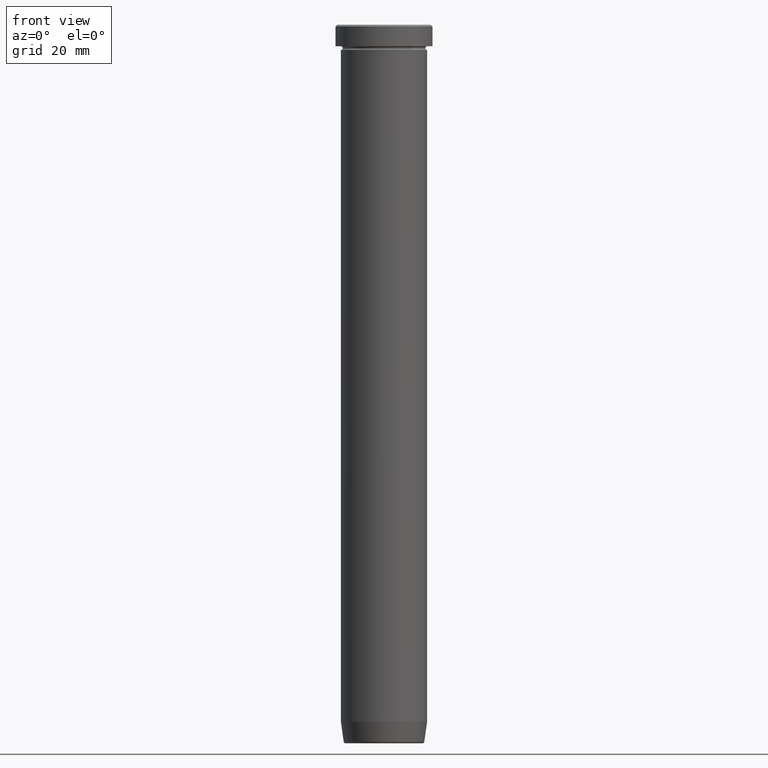
[diagram: clean part render]
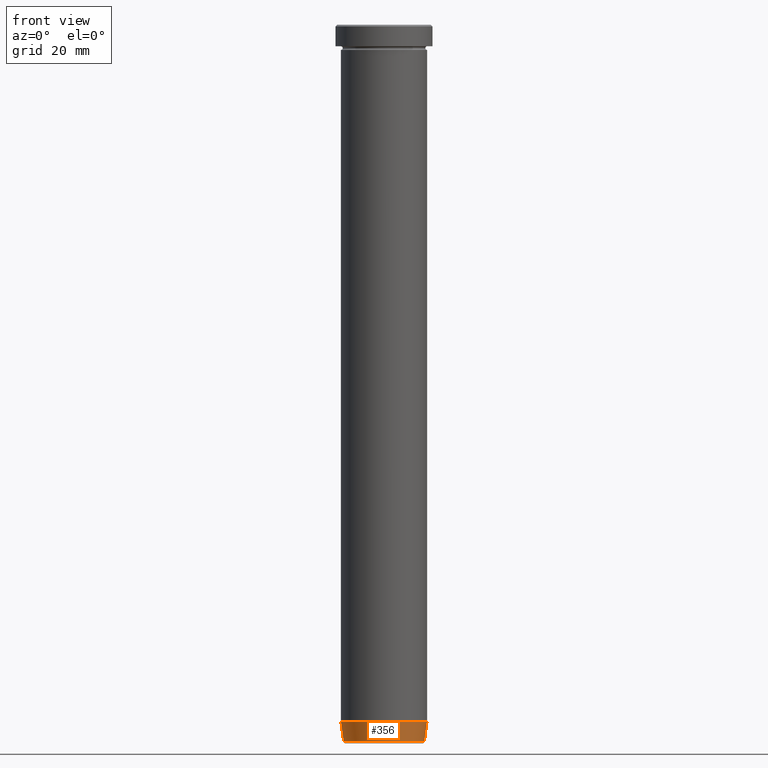
[diagram: same view with one face highlighted and labeled with its STEP entity id]
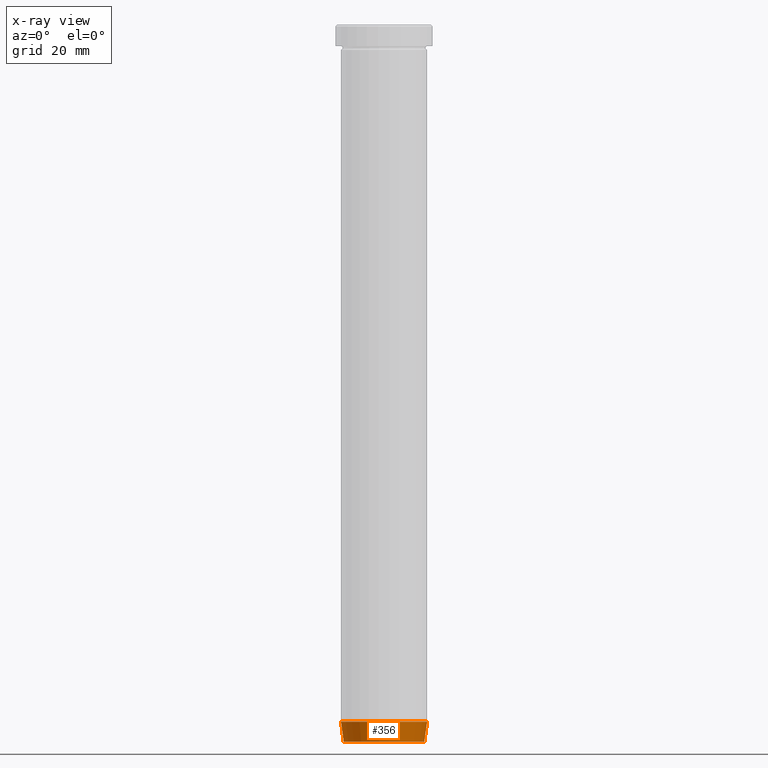
[diagram: x-ray of the same camera — body ghosted, the highlighted face saturated]
A machine part, front view. The second image highlights one B-rep face of the part: STEP entity #356.
The next image is the same camera in x-ray: the body ghosted, the highlighted face saturated — about 0% of this face is hidden behind the body in this view.
In plain terms, the highlighted conical surface has half-angle 8 deg.
Its self-contained STEP definition (entity closure, byte-faithful):
#7 = DIRECTION ( 'NONE',  ( -0.000000000000000000, -0.000000000000000000, 1.000000000000000000 ) ) ;
#21 = DIRECTION ( 'NONE',  ( -0.000000000000000000, -0.000000000000000000, 1.000000000000000000 ) ) ;
#28 = EDGE_CURVE ( 'NONE', #208, #164, #360, .T. ) ;
#51 = DIRECTION ( 'NONE',  ( 1.000000000000000000, 0.000000000000000000, 0.000000000000000000 ) ) ;
#55 = DIRECTION ( 'NONE',  ( -1.000000000000000000, 0.000000000000000000, 0.000000000000000000 ) ) ;
#65 = VECTOR ( 'NONE', #424, 1000.000000000000000 ) ;
#75 = EDGE_LOOP ( 'NONE', ( #302, #495, #369, #187 ) ) ;
#91 = LINE ( 'NONE', #409, #478 ) ;
#99 = CARTESIAN_POINT ( 'NONE',  ( 0.000000000000000000, 0.000000000000000000, -199.9999999999999716 ) ) ;
#157 = FACE_OUTER_BOUND ( 'NONE', #75, .T. ) ;
#163 = CARTESIAN_POINT ( 'NONE',  ( 11.21724565724831635, 0.000000000000000000, -199.5695865504800111 ) ) ;
#164 = VERTEX_POINT ( 'NONE', #548 ) ;
#167 = AXIS2_PLACEMENT_3D ( 'NONE', #99, #249, #51 ) ;
#187 = ORIENTED_EDGE ( 'NONE', *, *, #28, .F. ) ;
#201 = CIRCLE ( 'NONE', #484, 11.21724565724831635 ) ;
#208 = VERTEX_POINT ( 'NONE', #331 ) ;
#209 = CARTESIAN_POINT ( 'NONE',  ( -11.15675499178564678, 1.366308428956154791E-15, -199.9999999999999716 ) ) ;
#212 = CONICAL_SURFACE ( 'NONE', #167, 11.15675499178564678, 0.1396263401595471132 ) ;
#236 = AXIS2_PLACEMENT_3D ( 'NONE', #256, #21, #398 ) ;
#249 = DIRECTION ( 'NONE',  ( -0.000000000000000000, -0.000000000000000000, 1.000000000000000000 ) ) ;
#256 = CARTESIAN_POINT ( 'NONE',  ( 0.000000000000000000, 0.000000000000000000, -193.9999999999999716 ) ) ;
#298 = CARTESIAN_POINT ( 'NONE',  ( -11.21724565724831635, 1.421646278958346662E-15, -199.5695865504800111 ) ) ;
#302 = ORIENTED_EDGE ( 'NONE', *, *, #330, .F. ) ;
#327 = VERTEX_POINT ( 'NONE', #163 ) ;
#330 = EDGE_CURVE ( 'NONE', #385, #208, #334, .T. ) ;
#331 = CARTESIAN_POINT ( 'NONE',  ( -12.00000000000000000, 1.469576158976823947E-15, -193.9999999999999716 ) ) ;
#334 = LINE ( 'NONE', #209, #65 ) ;
#354 = EDGE_CURVE ( 'NONE', #385, #327, #201, .T. ) ;
#356 = ADVANCED_FACE ( 'NONE', ( #157 ), #212, .T. ) ;
#360 = CIRCLE ( 'NONE', #236, 12.00000000000000000 ) ;
#369 = ORIENTED_EDGE ( 'NONE', *, *, #570, .T. ) ;
#385 = VERTEX_POINT ( 'NONE', #298 ) ;
#398 = DIRECTION ( 'NONE',  ( 1.000000000000000000, 0.000000000000000000, 0.000000000000000000 ) ) ;
#409 = CARTESIAN_POINT ( 'NONE',  ( 11.15675499178564678, 0.000000000000000000, -199.9999999999999716 ) ) ;
#424 = DIRECTION ( 'NONE',  ( -0.1391731009600661872, 1.704378926181564918E-17, 0.9902680687415702510 ) ) ;
#469 = CARTESIAN_POINT ( 'NONE',  ( 0.000000000000000000, 0.000000000000000000, -199.5695865504800111 ) ) ;
#478 = VECTOR ( 'NONE', #496, 1000.000000000000000 ) ;
#484 = AXIS2_PLACEMENT_3D ( 'NONE', #469, #7, #55 ) ;
#495 = ORIENTED_EDGE ( 'NONE', *, *, #354, .T. ) ;
#496 = DIRECTION ( 'NONE',  ( 0.1391731009600661872, 0.000000000000000000, 0.9902680687415702510 ) ) ;
#548 = CARTESIAN_POINT ( 'NONE',  ( 12.00000000000000000, 0.000000000000000000, -193.9999999999999716 ) ) ;
#570 = EDGE_CURVE ( 'NONE', #327, #164, #91, .T. ) ;